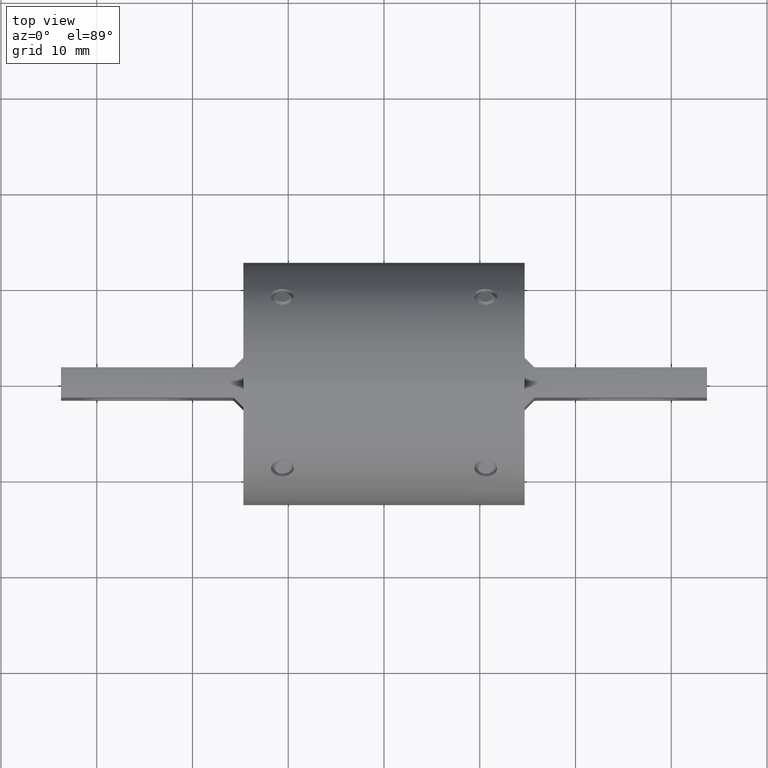
[diagram: clean part render]
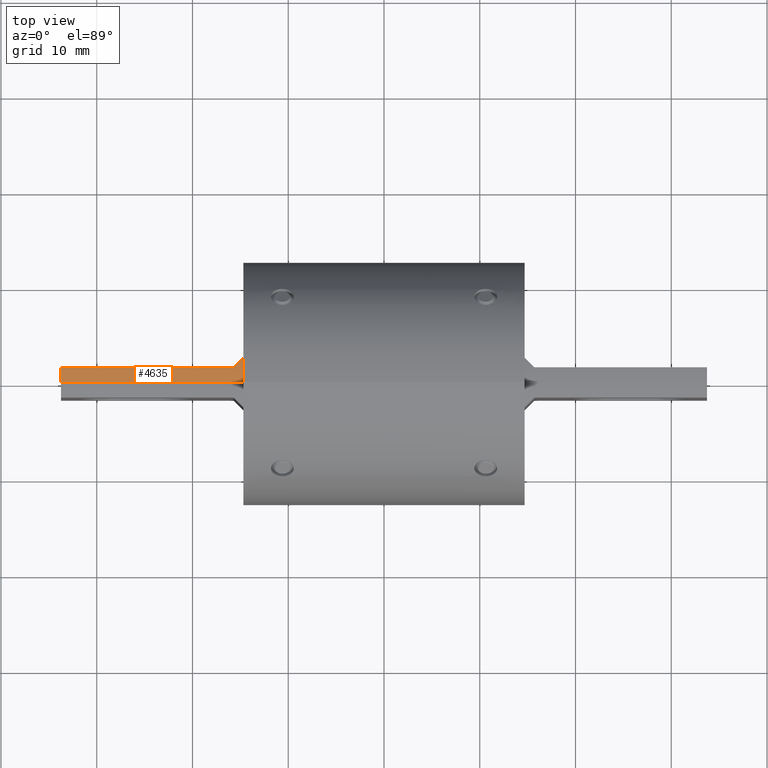
[diagram: same view with one face highlighted and labeled with its STEP entity id]
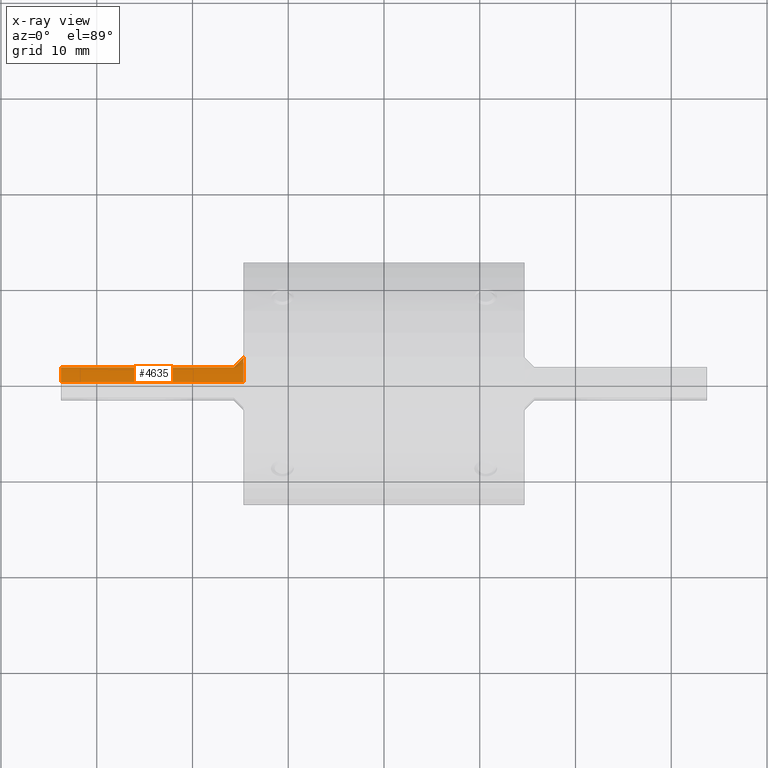
[diagram: x-ray of the same camera — body ghosted, the highlighted face saturated]
A machine part, top view. The second image highlights one B-rep face of the part: STEP entity #4635.
The next image is the same camera in x-ray: the body ghosted, the highlighted face saturated — about 0% of this face is hidden behind the body in this view.
In plain terms, the highlighted cylindrical surface (partial cylindrical patch) has radius 9.4234 mm, axis along (-1, -0, 0).
Its self-contained STEP definition (entity closure, byte-faithful):
#99 = LINE ( 'NONE', #5158, #3465 ) ;
#173 = CARTESIAN_POINT ( 'NONE',  ( -0.5780999999999992800, 0.06250000000000004200, 0.3656976209930822300 ) ) ;
#231 = DIRECTION ( 'NONE',  ( -1.000000000000000000, -2.096245319270477000E-016, 2.135355323886558800E-015 ) ) ;
#256 = VECTOR ( 'NONE', #4382, 39.37007874015748100 ) ;
#320 = AXIS2_PLACEMENT_3D ( 'NONE', #5201, #2291, #4792 ) ;
#379 = AXIS2_PLACEMENT_3D ( 'NONE', #1701, #1672, #4109 ) ;
#391 = LINE ( 'NONE', #173, #256 ) ;
#497 = ORIENTED_EDGE ( 'NONE', *, *, #3781, .T. ) ;
#690 = CARTESIAN_POINT ( 'NONE',  ( -0.6046048662956352600, 0.07599513370436433700, 0.3633912186319394600 ) ) ;
#695 = DIRECTION ( 'NONE',  ( 1.656781128233043900E-015, 3.053113317719178000E-016, 1.000000000000000000 ) ) ;
#844 = VERTEX_POINT ( 'NONE', #2333 ) ;
#1025 = FACE_OUTER_BOUND ( 'NONE', #1423, .T. ) ;
#1173 = ORIENTED_EDGE ( 'NONE', *, *, #4222, .F. ) ;
#1184 = CARTESIAN_POINT ( 'NONE',  ( -0.5780999999999991700, -5.517005911082248200E-018, 0.3710000000000001100 ) ) ;
#1343 = VERTEX_POINT ( 'NONE', #1184 ) ;
#1423 = EDGE_LOOP ( 'NONE', ( #2660, #4810, #497, #4447, #1173 ) ) ;
#1557 = CYLINDRICAL_SURFACE ( 'NONE', #4114, 0.3710000000000000000 ) ;
#1672 = DIRECTION ( 'NONE',  ( -1.000000000000000000, -2.096245319270476500E-016, 2.135355323886558800E-015 ) ) ;
#1701 = CARTESIAN_POINT ( 'NONE',  ( -1.328100000000000100, -1.973967094711065400E-016, 1.660192210940587700E-015 ) ) ;
#1727 =( BOUNDED_CURVE ( )  B_SPLINE_CURVE ( 3, ( #1936, #3638, #690, #4868 ),
 .UNSPECIFIED., .F., .F. ) 
 B_SPLINE_CURVE_WITH_KNOTS ( ( 4, 4 ),
 ( 4.432467356992574100, 4.543118184319864000 ),
 .UNSPECIFIED. ) 
 CURVE ( )  GEOMETRIC_REPRESENTATION_ITEM ( )  RATIONAL_B_SPLINE_CURVE ( ( 1.000000000000000000, 0.9989799597610233800, 0.9989799597610233800, 1.000000000000000000 ) ) 
 REPRESENTATION_ITEM ( '' )  );
#1936 = CARTESIAN_POINT ( 'NONE',  ( -0.5780999999999993900, 0.1025000000000003700, 0.3565596023107496800 ) ) ;
#2291 = DIRECTION ( 'NONE',  ( -1.000000000000000000, -2.096245319270476500E-016, 2.135355323886558800E-015 ) ) ;
#2333 = CARTESIAN_POINT ( 'NONE',  ( -1.328100000000000500, 0.06249999999999989600, 0.3656976209930839500 ) ) ;
#2576 = EDGE_CURVE ( 'NONE', #1343, #5053, #99, .T. ) ;
#2660 = ORIENTED_EDGE ( 'NONE', *, *, #2576, .F. ) ;
#2883 = CARTESIAN_POINT ( 'NONE',  ( -0.6180999999999998700, 0.06250000000000006900, 0.3656976209930826200 ) ) ;
#2991 = VERTEX_POINT ( 'NONE', #2883 ) ;
#3154 = EDGE_CURVE ( 'NONE', #2991, #844, #391, .T. ) ;
#3261 = CARTESIAN_POINT ( 'NONE',  ( -0.5780999999999993900, 0.1025000000000003700, 0.3565596023107496800 ) ) ;
#3465 = VECTOR ( 'NONE', #231, 39.37007874015748100 ) ;
#3638 = CARTESIAN_POINT ( 'NONE',  ( -0.5912579185385218300, 0.08934208146147754000, 0.3603421021830240900 ) ) ;
#3781 = EDGE_CURVE ( 'NONE', #5412, #2991, #1727, .T. ) ;
#4109 = DIRECTION ( 'NONE',  ( 1.472694336207149900E-015, 3.053113317719179000E-016, 1.000000000000000000 ) ) ;
#4114 = AXIS2_PLACEMENT_3D ( 'NONE', #4821, #4587, #695 ) ;
#4116 = CIRCLE ( 'NONE', #320, 0.3710000000000000000 ) ;
#4222 = EDGE_CURVE ( 'NONE', #5053, #844, #5121, .T. ) ;
#4382 = DIRECTION ( 'NONE',  ( -1.000000000000000000, -2.096245319270477000E-016, 2.135355323886558800E-015 ) ) ;
#4447 = ORIENTED_EDGE ( 'NONE', *, *, #3154, .T. ) ;
#4587 = DIRECTION ( 'NONE',  ( -1.000000000000000000, -2.096245319270476800E-016, 2.135355323886558800E-015 ) ) ;
#4635 = ADVANCED_FACE ( 'NONE', ( #1025 ), #1557, .T. ) ;
#4792 = DIRECTION ( 'NONE',  ( 1.656781128233043900E-015, 3.053113317719178000E-016, 1.000000000000000000 ) ) ;
#4810 = ORIENTED_EDGE ( 'NONE', *, *, #5266, .T. ) ;
#4821 = CARTESIAN_POINT ( 'NONE',  ( -0.5780999999999999500, -4.017831052582085300E-017, 5.867571802566846500E-017 ) ) ;
#4868 = CARTESIAN_POINT ( 'NONE',  ( -0.6180999999999998700, 0.06250000000000006900, 0.3656976209930826200 ) ) ;
#5053 = VERTEX_POINT ( 'NONE', #5360 ) ;
#5121 = CIRCLE ( 'NONE', #379, 0.3710000000000000000 ) ;
#5158 = CARTESIAN_POINT ( 'NONE',  ( -0.5780999999999993900, 7.309219356156067400E-017, 0.3710000000000001100 ) ) ;
#5201 = CARTESIAN_POINT ( 'NONE',  ( -0.5780999999999999500, -4.017831052582085300E-017, 5.867571802566846500E-017 ) ) ;
#5266 = EDGE_CURVE ( 'NONE', #1343, #5412, #4116, .T. ) ;
#5360 = CARTESIAN_POINT ( 'NONE',  ( -1.328099999999999200, -5.517005911081634200E-018, 0.3710000000000016600 ) ) ;
#5412 = VERTEX_POINT ( 'NONE', #3261 ) ;